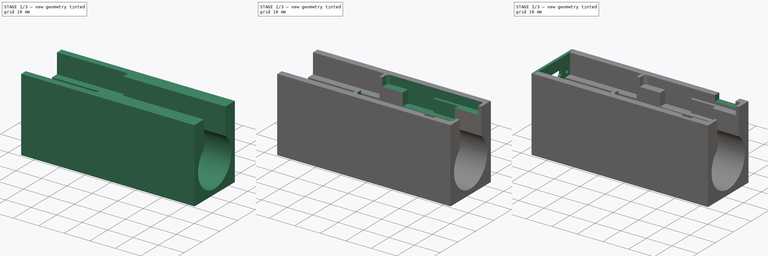
[diagram: build sequence overview — one tinted view per stage of 3, left to right]
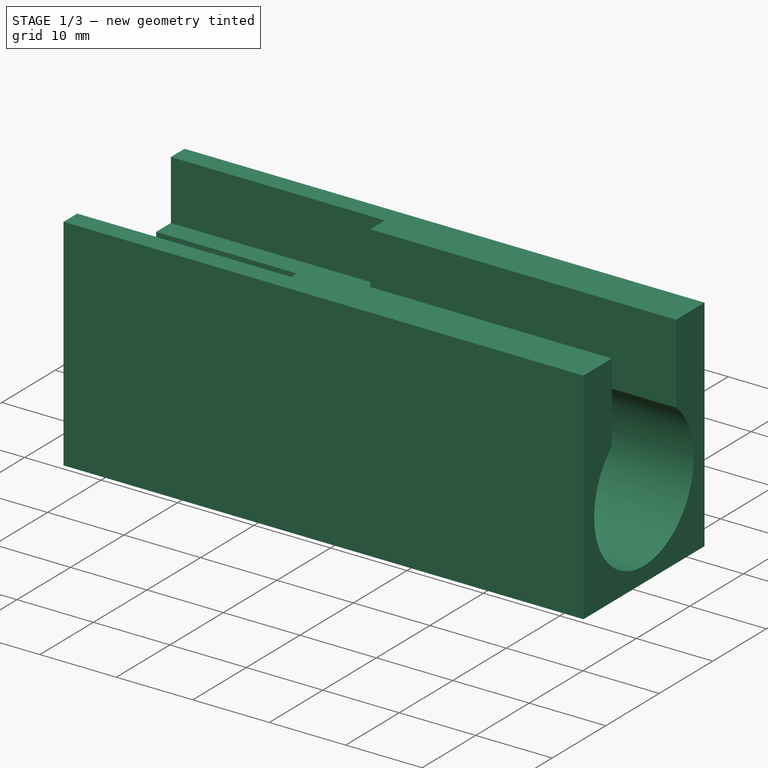
[diagram: stage 1 of 3 — iso view after this stage's code; geometry added in this stage tinted green]
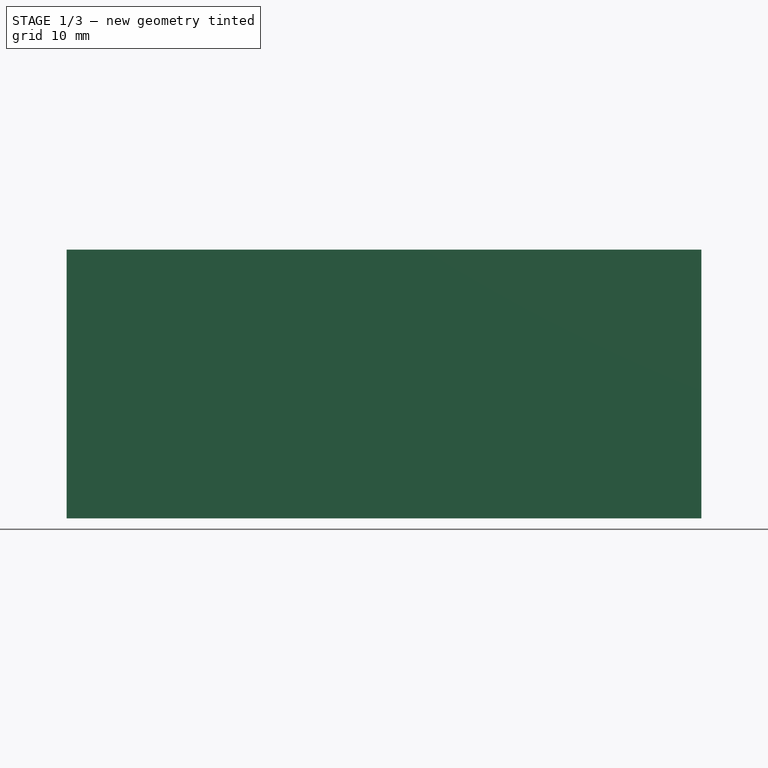
[diagram: stage 1 of 3 — front view after this stage's code; geometry added in this stage tinted green]
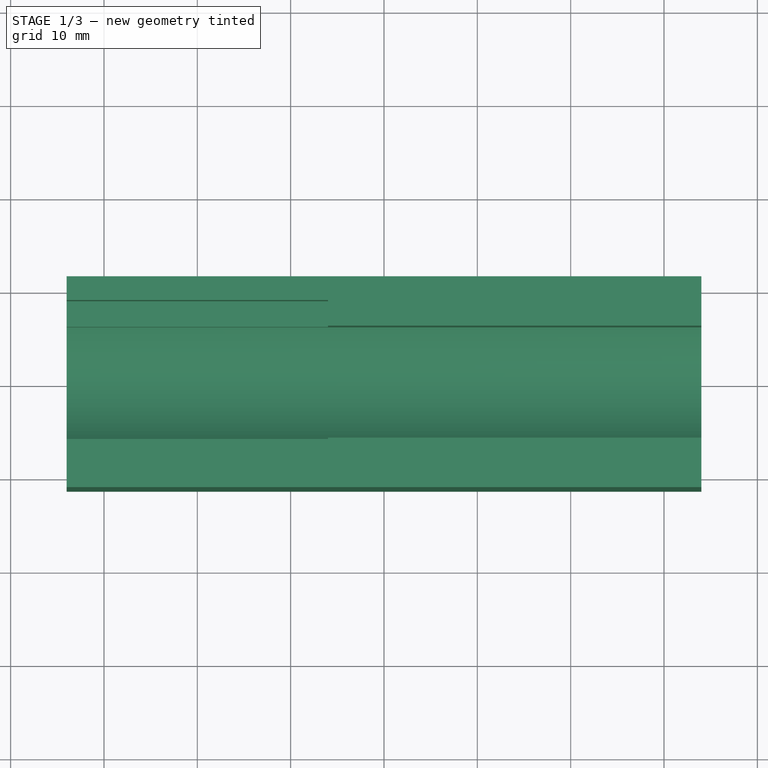
[diagram: stage 1 of 3 — top view after this stage's code; geometry added in this stage tinted green]
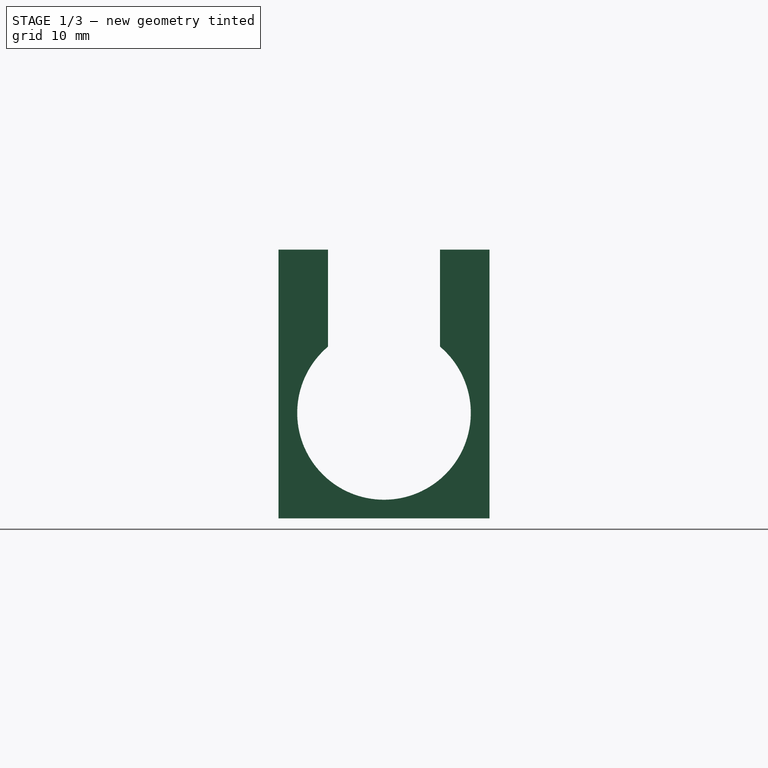
[diagram: stage 1 of 3 — right view after this stage's code; geometry added in this stage tinted green]
FCSTD DOCUMENT  (FreeCAD 0.20R29410 (Git))
Label: powerBank
License: CreativeCommons Attribution-ShareAlike
LicenseURL: http://creativecommons.org/licenses/by-sa/4.0/
objects: Sketcher::SketchObject×6, PartDesign::Pocket×4, Part::Feature×3, PartDesign::Pad×2, PartDesign::Body×1, App::DocumentObjectGroup×1
note: 22 computed .brp shape members not serialized (recipe doc carries the construction recipe); baked Part::Feature solids carry a one-line shape summary decoded from their .brp

FEATURE [Part::Feature] Fusion004  label="03962A"
  Placement = pos=(-20,0,22) rot=(0,0,1;0rad)
  shape: bbox 29.18 x 17.2 x 3.705 mm, 1582 faces, 2 solids (baked)
FEATURE [Part::Feature] Body001  label="18650"
  Placement = pos=(32.5,0,11.3) rot=(0,0,1;1.5708rad)
  shape: bbox 65 x 19.9 x 19.9 mm, 18 faces (baked)
FEATURE [Sketcher::SketchObject] Sketch  label="Sketch-box-base"
  FullyConstrained = false
  MapMode = 5
  Placement = pos=(0,0,0) rot=(0.57735,0.57735,0.57735;2.0944rad)
  Support = -> [YZ_Plane]
  sketch-geometry (9):
    g0: LineSegment StartX=-11.3 StartY=0 StartZ=0 EndX=11.3 EndY=0 EndZ=0
    g1: LineSegment StartX=11.3 StartY=0 StartZ=0 EndX=11.3 EndY=28.8 EndZ=0
    g2: LineSegment StartX=-11.3 StartY=28.8 StartZ=0 EndX=-11.3 EndY=0 EndZ=0
    g3: ArcOfCircle CenterX=0 CenterY=11.3 CenterZ=0 NormalX=0 NormalY=0 NormalZ=1 AngleXU=0 Radius=9.3 StartAngle=2.27203 EndAngle=7.15275
    g4: LineSegment StartX=11.3 StartY=28.8 StartZ=0 EndX=6 EndY=28.8 EndZ=0
    g5: LineSegment StartX=-11.3 StartY=28.8 StartZ=0 EndX=-6 EndY=28.8 EndZ=0
    g6: LineSegment StartX=-6 StartY=28.8 StartZ=0 EndX=-6 EndY=18.4056 EndZ=0
    g7: LineSegment StartX=6 StartY=18.4056 StartZ=0 EndX=6 EndY=28.8 EndZ=0
    g8: LineSegment StartX=-6 StartY=28.8 StartZ=0 EndX=6 EndY=28.8 EndZ=0
  constraints (26):
    c: Coincident(g0,g1)
    c: Coincident(g2,g0)
    c: Vertical(g1)
    c: Vertical(g2)
    c: PointOnObject(g0,g-1)
    c: Symmetric(g0,g0,g-2)
    c: PointOnObject(g3,g-2)
    c: Radius(g3) = 9.3
    c: DistanceX(g0,g0) = 22.6
    c: DistanceY(g-1,g3) = 11.3
    c: Coincident(g3,g6)
    c: Symmetric(g3,g3,g-2)
    c: DistanceY(g3,g2) = 17.5
    c: Coincident(g4,g1)
    c: Coincident(g4,g7)
    c: Horizontal(g4)
    c: Coincident(g5,g2)
    c: Horizontal(g5)
    c: Vertical(g6)
    c: Vertical(g7)
    c: Coincident(g7,g3)
    c: Coincident(g6,g5)
    c: DistanceX(g5,g4) = 12
    c: Equal(g2,g1)
    c: Coincident(g8,g5)
    c: Coincident(g8,g4)
FEATURE [PartDesign::Pad] Pad  label="Pad-box-base"
  AllowMultiFace = false
  Direction = (1,1,1)
  Length = 68
  Length2 = 100
  Midplane = true
  Placement = pos=(0,0,0) rot=(0.57735,0.57735,0.57735;2.0944rad)
  Profile = -> Sketch
  Refine = true
  Type = 0
FEATURE [Sketcher::SketchObject] Sketch001  label="Sketch-03962A-recess"
  FullyConstrained = false
  MapMode = 5
  Placement = pos=(-3.2486e-12,3.2486e-12,28.8) rot=(0,0,-1;1.5708rad)
  Support = -> [Pad]
  sketch-geometry (4):
    g0: LineSegment StartX=8.75 StartY=-6 StartZ=0 EndX=8.75 EndY=-34 EndZ=0
    g1: LineSegment StartX=8.75 StartY=-34 StartZ=0 EndX=-8.75 EndY=-34 EndZ=0
    g2: LineSegment StartX=-8.75 StartY=-34 StartZ=0 EndX=-8.75 EndY=-6 EndZ=0
    g3: LineSegment StartX=-8.75 StartY=-6 StartZ=0 EndX=8.75 EndY=-6 EndZ=0
  constraints (11):
    c: Coincident(g3,g0)
    c: Coincident(g0,g1)
    c: Coincident(g1,g2)
    c: Horizontal(g1)
    c: Vertical(g0)
    c: Vertical(g2)
    c: DistanceY(g0,g0) = 28
    c: DistanceX(g1,g1) = 17.5
    c: Symmetric(g2,g3,g-2)
    c: DistanceY(g3,g-1) = 6
    c: Coincident(g3,g2)
FEATURE [PartDesign::Pocket] Pocket  label="Pocket-03962A-recess"
  AllowMultiFace = false
  BaseFeature = -> Pad
  Direction = (1,1,1)
  Length = 7.8
  Length2 = 100
  Placement = pos=(0,0,0) rot=(0.57735,0.57735,0.57735;2.0944rad)
  Profile = -> Sketch001
  Refine = true
  Type = 0
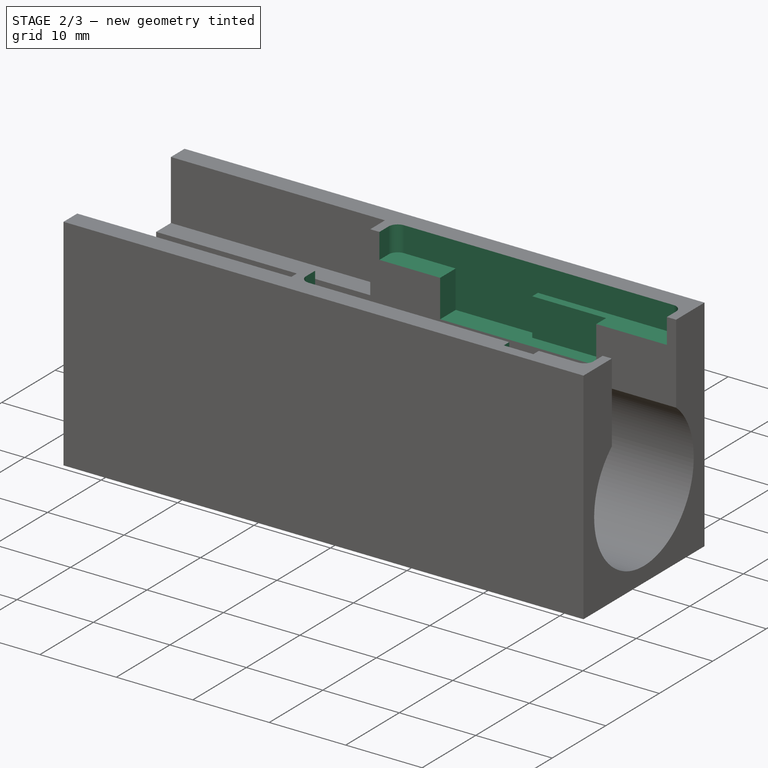
[diagram: stage 2 of 3 — iso view after this stage's code; geometry added in this stage tinted green]
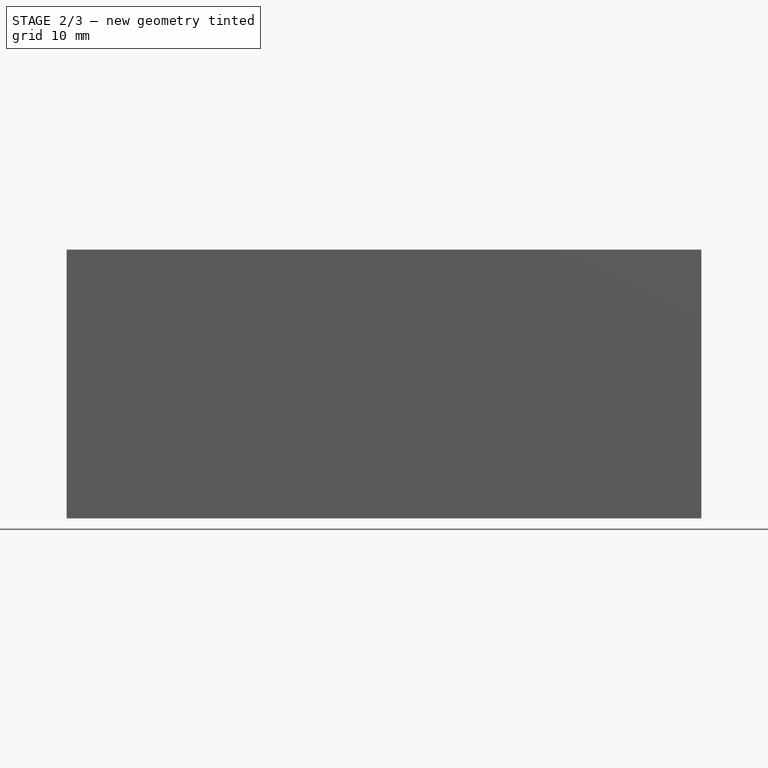
[diagram: stage 2 of 3 — front view after this stage's code; geometry added in this stage tinted green]
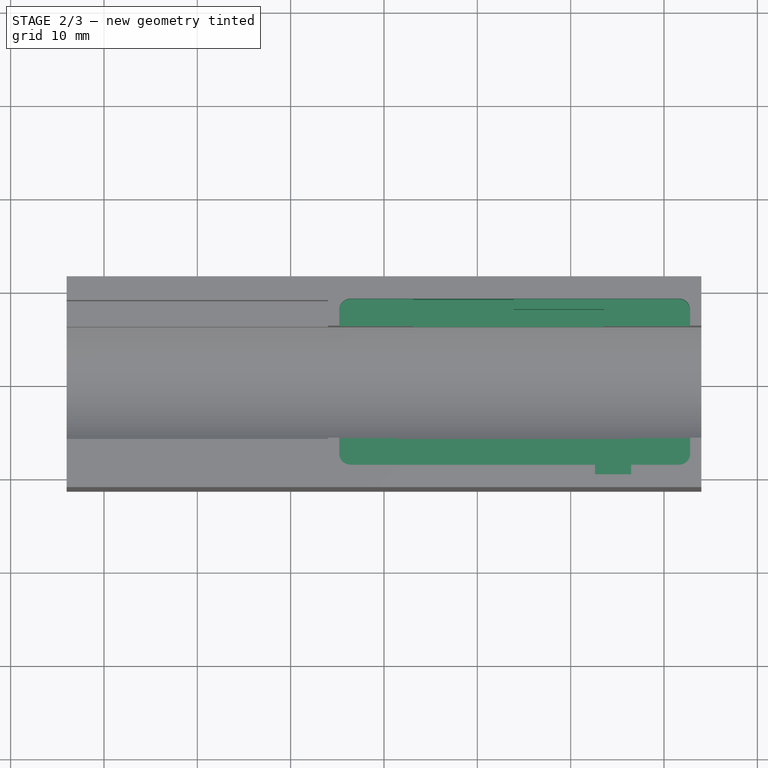
[diagram: stage 2 of 3 — top view after this stage's code; geometry added in this stage tinted green]
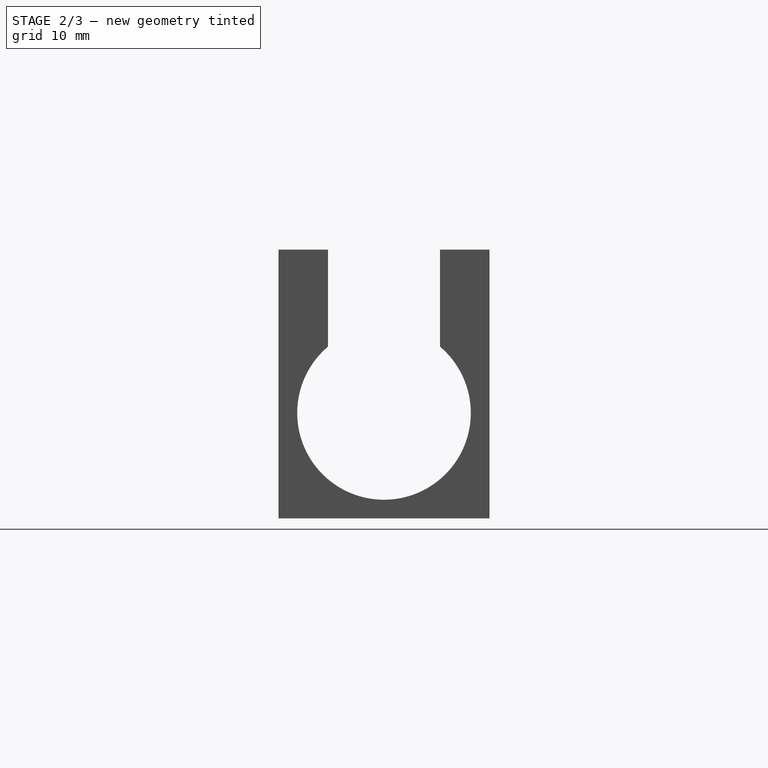
[diagram: stage 2 of 3 — right view after this stage's code; geometry added in this stage tinted green]
FEATURE [Sketcher::SketchObject] Sketch002  label="Sketch-MT-3608-recess-h1"
  FullyConstrained = false
  MapMode = 5
  Placement = pos=(-3.2486e-12,3.2486e-12,28.8) rot=(0,0,-1;1.5708rad)
  Support = -> [Pocket]
  sketch-geometry (8):
    g0: LineSegment StartX=-7.7 StartY=-4.8 StartZ=0 EndX=7.7 EndY=-4.8 EndZ=0
    g1: LineSegment StartX=8.9 StartY=-3.6 StartZ=0 EndX=8.9 EndY=31.6 EndZ=0
    g2: LineSegment StartX=7.7 StartY=32.8 StartZ=0 EndX=-7.7 EndY=32.8 EndZ=0
    g3: LineSegment StartX=-8.9 StartY=31.6 StartZ=0 EndX=-8.9 EndY=-3.6 EndZ=0
    g4: ArcOfCircle CenterX=-7.7 CenterY=31.6 CenterZ=0 NormalX=0 NormalY=0 NormalZ=1 AngleXU=0 Radius=1.2 StartAngle=1.5708 EndAngle=3.14159
    g5: ArcOfCircle CenterX=-7.7 CenterY=-3.6 CenterZ=0 NormalX=0 NormalY=0 NormalZ=1 AngleXU=0 Radius=1.2 StartAngle=3.14159 EndAngle=4.71239
    g6: ArcOfCircle CenterX=7.7 CenterY=-3.6 CenterZ=0 NormalX=0 NormalY=0 NormalZ=1 AngleXU=0 Radius=1.2 StartAngle=4.71239 EndAngle=6.28319
    g7: ArcOfCircle CenterX=7.7 CenterY=31.6 CenterZ=0 NormalX=0 NormalY=0 NormalZ=1 AngleXU=0 Radius=1.2 StartAngle=0 EndAngle=1.5708
  constraints (20):
    c: Horizontal(g0)
    c: Horizontal(g2)
    c: Vertical(g1)
    c: Vertical(g3)
    c: Tangent(g3,g4) = -1.5708
    c: Tangent(g2,g4) = -1.5708
    c: Tangent(g0,g5) = -1.5708
    c: Tangent(g3,g5) = -1.5708
    c: Tangent(g1,g6) = -1.5708
    c: Tangent(g0,g6) = -1.5708
    c: Tangent(g1,g7) = -1.5708
    c: Tangent(g2,g7) = -1.5708
    c: Equal(g5,g4)
    c: Equal(g4,g7)
    c: Equal(g7,g6)
    c: DistanceX(g3,g1) = 17.8
    c: Symmetric(g2,g2,g-2)
    c: Radius(g7) = 1.2
    c: DistanceY(g0,g2) = 37.6
    c: DistanceY(g-1,g2) = 32.8
FEATURE [PartDesign::Pocket] Pocket001  label="Pocket-MT-3608-recess-h1"
  AllowMultiFace = false
  BaseFeature = -> Pocket
  Direction = (1,1,1)
  Length = 3.3
  Length2 = 100
  Placement = pos=(0,0,0) rot=(0.57735,0.57735,0.57735;2.0944rad)
  Profile = -> Sketch002
  Refine = true
  Type = 0
FEATURE [Sketcher::SketchObject] Sketch003  label="Sketch-MT-3608-recess-h2"
  ExternalGeometry = -> [Pocket001]
  FullyConstrained = false
  MapMode = 5
  Placement = pos=(-3.2486e-12,3.2486e-12,28.8) rot=(0,0,-1;1.5708rad)
  Support = -> [Pocket001]
  sketch-geometry (12):
    g0: LineSegment StartX=-7.82946 StartY=23.5614 StartZ=0 EndX=-7.82946 EndY=13.9017 EndZ=0
    g1: LineSegment StartX=-7.82946 StartY=13.9017 StartZ=0 EndX=-8.9 EndY=13.9017 EndZ=0
    g2: LineSegment StartX=-8.9 StartY=13.9017 StartZ=0 EndX=-8.9 EndY=3.1443 EndZ=0
    g3: LineSegment StartX=-8.9 StartY=3.1443 StartZ=0 EndX=3.01349 EndY=3.1443 EndZ=0
    g4: LineSegment StartX=3.01349 StartY=3.1443 StartZ=0 EndX=3.01349 EndY=1.42326 EndZ=0
    g5: LineSegment StartX=3.01349 StartY=1.42326 StartZ=0 EndX=8.44646 EndY=1.42326 EndZ=0
    g6: LineSegment StartX=8.44646 StartY=1.42326 StartZ=0 EndX=8.44646 EndY=22.6099 EndZ=0
    g7: LineSegment StartX=9.91831 StartY=26.4827 StartZ=0 EndX=-4.43007 EndY=26.4827 EndZ=0
    g8: LineSegment StartX=-4.43006 StartY=26.4827 StartZ=0 EndX=-4.43006 EndY=23.5614 EndZ=0
    g9: LineSegment StartX=-4.43006 StartY=23.5614 StartZ=0 EndX=-7.82946 EndY=23.5614 EndZ=0
    g10: LineSegment StartX=8.44646 StartY=22.6099 StartZ=0 EndX=9.91831 EndY=22.6099 EndZ=0
    g11: LineSegment StartX=9.91831 StartY=22.6099 StartZ=0 EndX=9.91831 EndY=26.4827 EndZ=0
  constraints (25):
    c: Vertical(g0)
    c: Coincident(g0,g1)
    c: Coincident(g1,g2)
    c: Vertical(g2)
    c: Horizontal(g3)
    c: Coincident(g3,g4)
    c: Vertical(g4)
    c: Coincident(g4,g5)
    c: Horizontal(g5)
    c: Coincident(g5,g6)
    c: Vertical(g6)
    c: Horizontal(g7)
    c: Coincident(g7,g8)
    c: Vertical(g8)
    c: Coincident(g8,g9)
    c: Coincident(g9,g0)
    c: Horizontal(g9)
    c: Horizontal(g10)
    c: Coincident(g10,g11)
    c: Vertical(g11)
    c: Coincident(g6,g10)
    c: Coincident(g7,g11)
    c: Horizontal(g1)
    c: Coincident(g3,g2)
    c: PointOnObject(g1,g-3)
FEATURE [PartDesign::Pocket] Pocket002  label="Pocket-MT-3608-recess-h2"
  AllowMultiFace = false
  BaseFeature = -> Pocket001
  Direction = (1,1,1)
  Length = 8.2
  Length2 = 100
  Placement = pos=(0,0,0) rot=(0.57735,0.57735,0.57735;2.0944rad)
  Profile = -> Sketch003
  Refine = true
  Type = 0
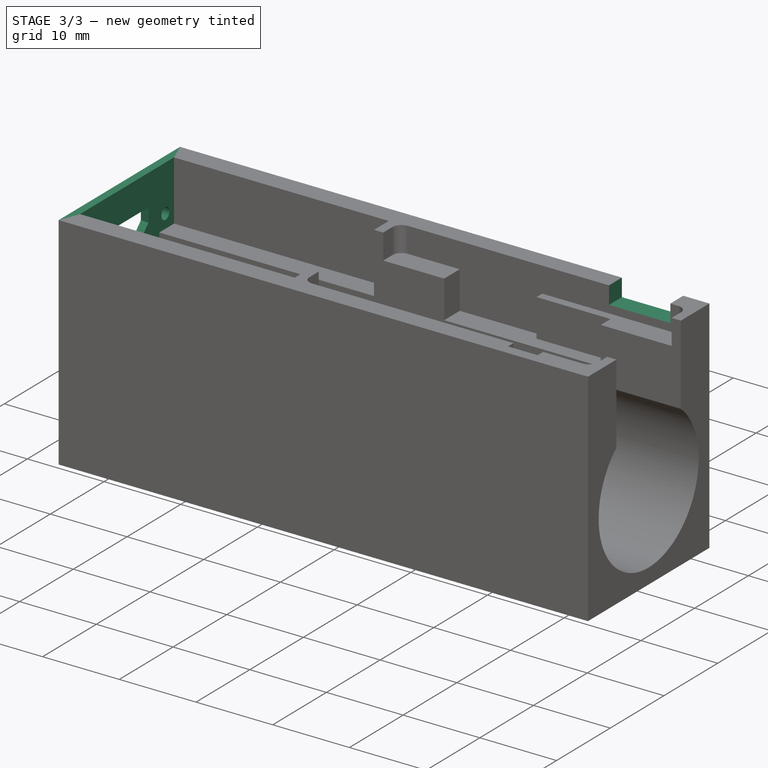
[diagram: stage 3 of 3 — iso view after this stage's code; geometry added in this stage tinted green]
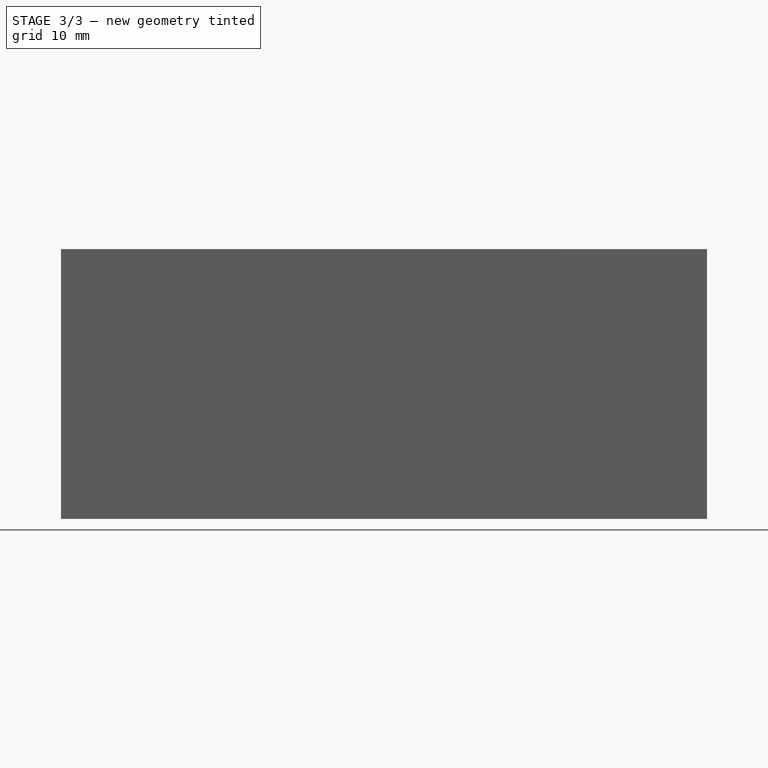
[diagram: stage 3 of 3 — front view after this stage's code; geometry added in this stage tinted green]
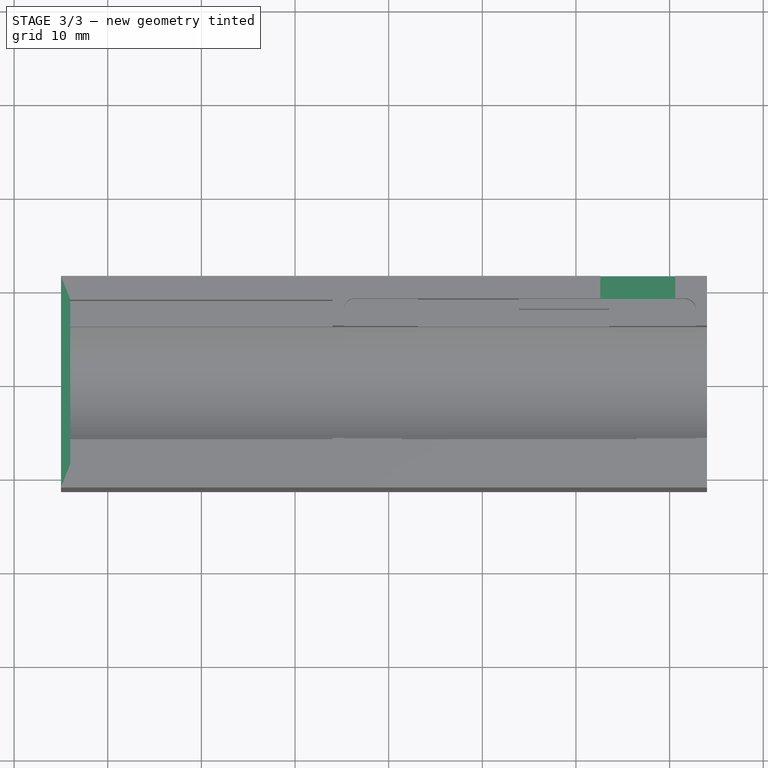
[diagram: stage 3 of 3 — top view after this stage's code; geometry added in this stage tinted green]
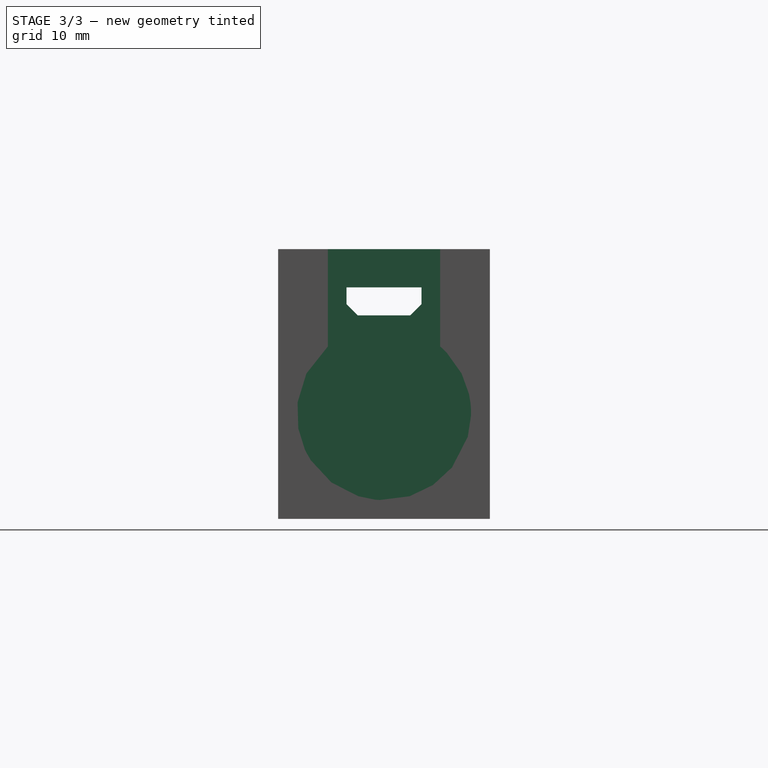
[diagram: stage 3 of 3 — right view after this stage's code; geometry added in this stage tinted green]
FEATURE [Sketcher::SketchObject] Sketch004  label="Sketch-side-wall"
  ExternalGeometry = -> [Pocket002]
  FullyConstrained = false
  MapMode = 5
  Placement = pos=(-34,3.8284e-12,-3.8359e-12) rot=(0.57735,0.57735,-0.57735;4.18879rad)
  Support = -> [Pocket002]
  sketch-geometry (11):
    g0: LineSegment StartX=-11.3 StartY=0 StartZ=0 EndX=11.3 EndY=0 EndZ=0
    g1: LineSegment StartX=11.3 StartY=0 StartZ=0 EndX=11.3 EndY=-28.8 EndZ=0
    g2: LineSegment StartX=11.3 StartY=-28.8 StartZ=0 EndX=-11.3 EndY=-28.8 EndZ=0
    g3: LineSegment StartX=-11.3 StartY=-28.8 StartZ=0 EndX=-11.3 EndY=0 EndZ=0
    g4: LineSegment StartX=-2.8 StartY=-21.725 StartZ=0 EndX=2.8 EndY=-21.725 EndZ=0
    g5: LineSegment StartX=2.8 StartY=-21.725 StartZ=0 EndX=4 EndY=-22.925 EndZ=0
    g6: LineSegment StartX=4 StartY=-22.925 StartZ=0 EndX=4 EndY=-24.725 EndZ=0
    g7: LineSegment StartX=4 StartY=-24.725 StartZ=0 EndX=-4 EndY=-24.725 EndZ=0
    g8: LineSegment StartX=-4 StartY=-24.725 StartZ=0 EndX=-4 EndY=-22.925 EndZ=0
    g9: LineSegment StartX=-4 StartY=-22.925 StartZ=0 EndX=-2.8 EndY=-21.725 EndZ=0
    g10: Circle CenterX=7.15 CenterY=-22.8 CenterZ=0 NormalX=0 NormalY=0 NormalZ=1 AngleXU=0 Radius=0.75
  constraints (31):
    c: Coincident(g0,g1)
    c: Coincident(g1,g2)
    c: Coincident(g2,g3)
    c: Coincident(g3,g0)
    c: Horizontal(g0)
    c: Horizontal(g2)
    c: Vertical(g1)
    c: Vertical(g3)
    c: PointOnObject(g0,g-1)
    c: Coincident(g1,g-3)
    c: Symmetric(g2,g1,g-2)
    c: Horizontal(g4)
    c: Coincident(g4,g5)
    c: Coincident(g5,g6)
    c: Vertical(g6)
    c: Coincident(g6,g7)
    c: Horizontal(g7)
    c: Coincident(g7,g8)
    c: Vertical(g8)
    c: Coincident(g8,g9)
    c: Coincident(g9,g4)
    c: DistanceY(g6,g4) = 3
    c: DistanceX(g7,g7) = 8
    c: Angle(g4,g5) = 2.35619
    c: Angle(g9,g4) = 2.35619
    c: Symmetric(g8,g5,g-2)
    c: DistanceY(g2,g7) = 4.075
    c: DistanceY(g8,g8) = 1.8
    c: Radius(g10) = 0.75
    c: DistanceX(g10,g1) = 4.15
    c: DistanceY(g1,g10) = 6
FEATURE [PartDesign::Pad] Pad001  label="Pad-side-wall"
  AllowMultiFace = false
  BaseFeature = -> Pocket002
  Direction = (1,1,1)
  Length = 1
  Length2 = 100
  Placement = pos=(0,0,0) rot=(0.57735,0.57735,0.57735;2.0944rad)
  Profile = -> Sketch004
  Refine = true
  Type = 0
FEATURE [Sketcher::SketchObject] Sketch005  label="Sketch-cables-recess"
  FullyConstrained = false
  MapMode = 5
  Placement = pos=(-3.2463e-12,3.2691e-12,28.8) rot=(0,0,-1;1.5708rad)
  Support = -> [Pad001]
  sketch-geometry (4):
    g0: LineSegment StartX=-8.7 StartY=30.6 StartZ=0 EndX=-11.3 EndY=30.6 EndZ=0
    g1: LineSegment StartX=-11.3 StartY=30.6 StartZ=0 EndX=-11.3 EndY=22.6 EndZ=0
    g2: LineSegment StartX=-11.3 StartY=22.6 StartZ=0 EndX=-8.7 EndY=22.6 EndZ=0
    g3: LineSegment StartX=-8.7 StartY=22.6 StartZ=0 EndX=-8.7 EndY=30.6 EndZ=0
  constraints (10):
    c: Coincident(g0,g1)
    c: Coincident(g1,g2)
    c: Coincident(g2,g3)
    c: Coincident(g3,g0)
    c: Horizontal(g0)
    c: Horizontal(g2)
    c: Vertical(g1)
    c: Vertical(g3)
    c: DistanceX(g2,g2) = 2.6
    c: DistanceY(g1,g1) = 8
FEATURE [PartDesign::Pocket] Pocket003  label="Pocket-cables-recess"
  AllowMultiFace = false
  BaseFeature = -> Pad001
  Direction = (1,1,1)
  Length = 2.3
  Length2 = 100
  Placement = pos=(0,0,0) rot=(0.57735,0.57735,0.57735;2.0944rad)
  Profile = -> Sketch005
  Refine = true
  Type = 0
FEATURE [PartDesign::Body] Body  label="Body-powerBank"
  Group = -> [Sketch,Pad,Sketch001,Pocket,Sketch002,Pocket001,Sketch003,Pocket002,Sketch004,Pad001,Sketch005,Pocket003]
  Origin = -> Origin
  Tip = -> Pocket003
FEATURE [Part::Feature] Fusion005  label="MT-3608"
  Placement = pos=(14,0,25.5) rot=(0,1,0;3.14159rad)
  shape: bbox 37.2 x 18.34 x 6.9 mm, 847 faces (baked)
FEATURE [App::DocumentObjectGroup] Group  label="Componentes"
  Group = -> [Fusion004,Body001,Fusion005]
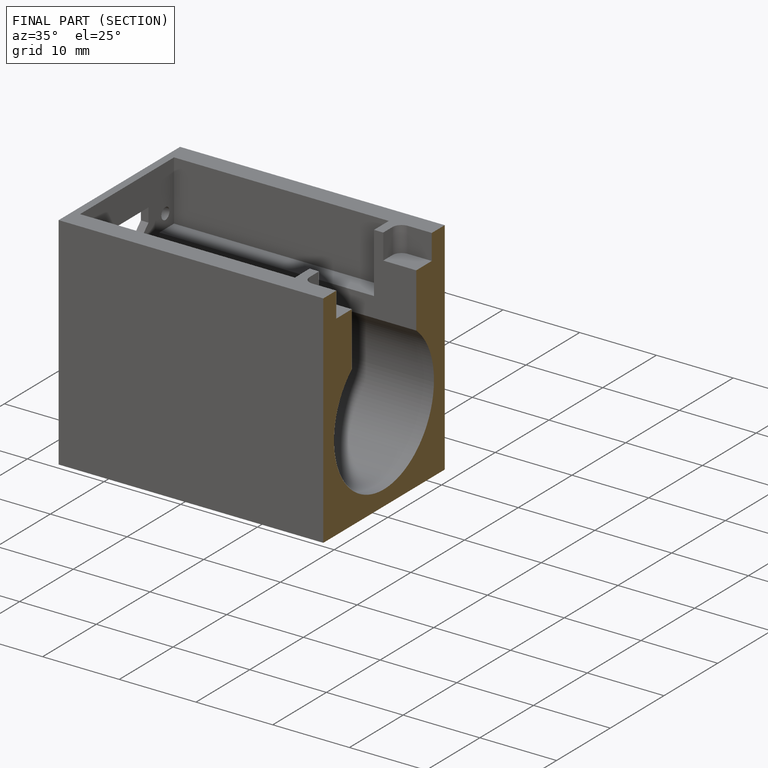
[diagram: finished part — half-section view (interior)]
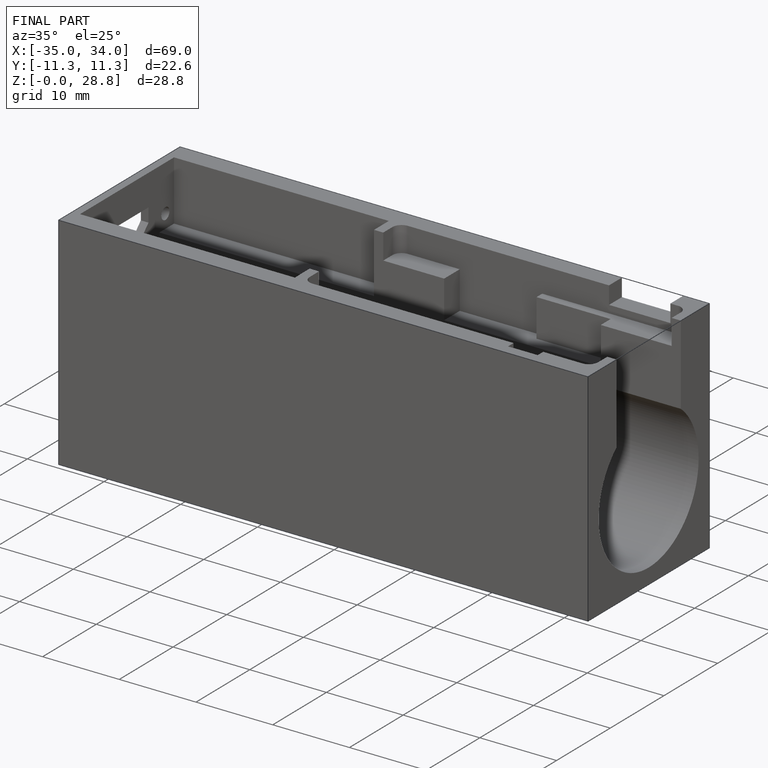
[diagram: finished part — iso view with bounding-box wireframe]
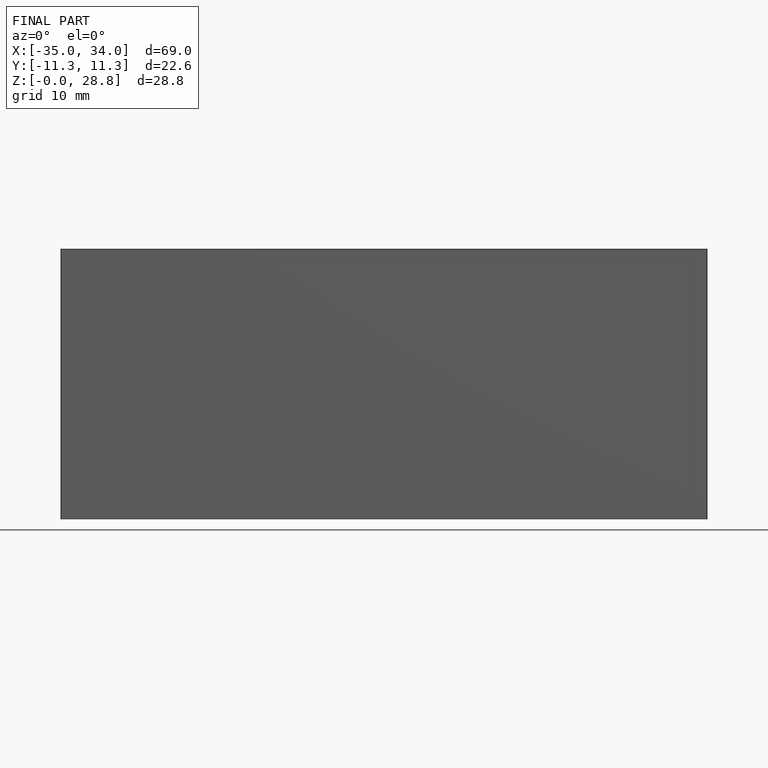
[diagram: finished part — front view with bounding-box wireframe]
